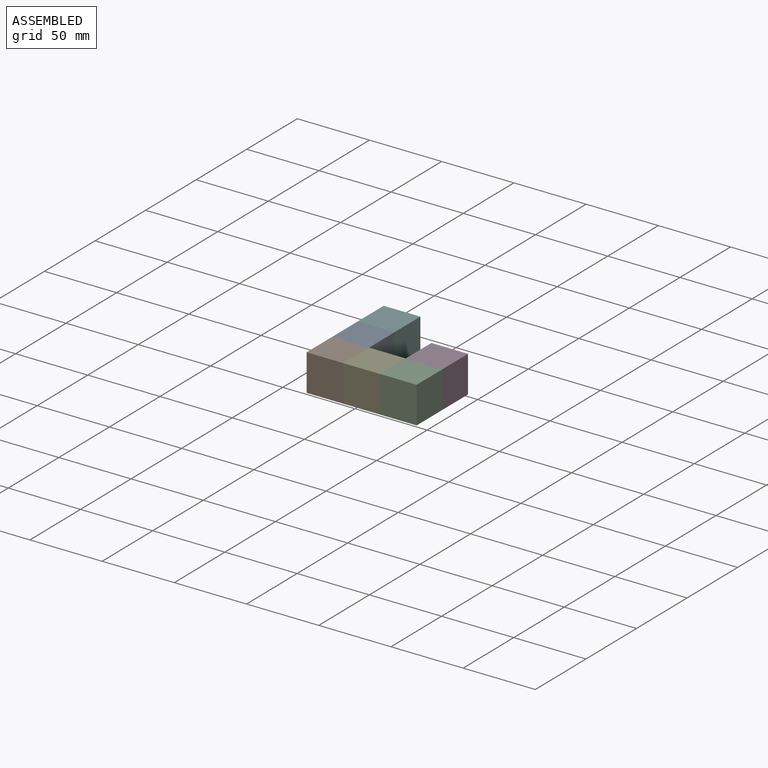
[diagram: assembled view]
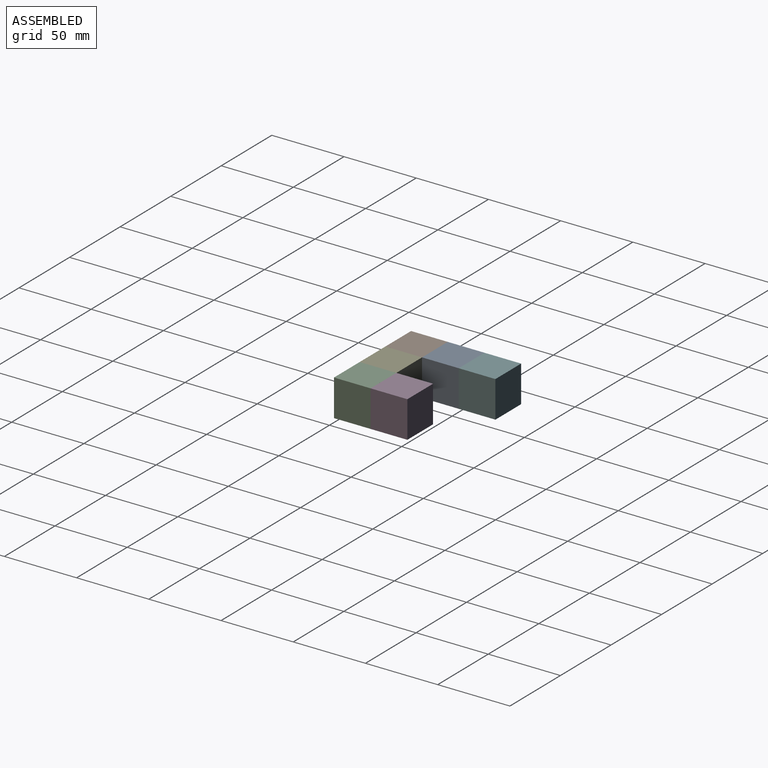
[diagram: assembled view, second angle]
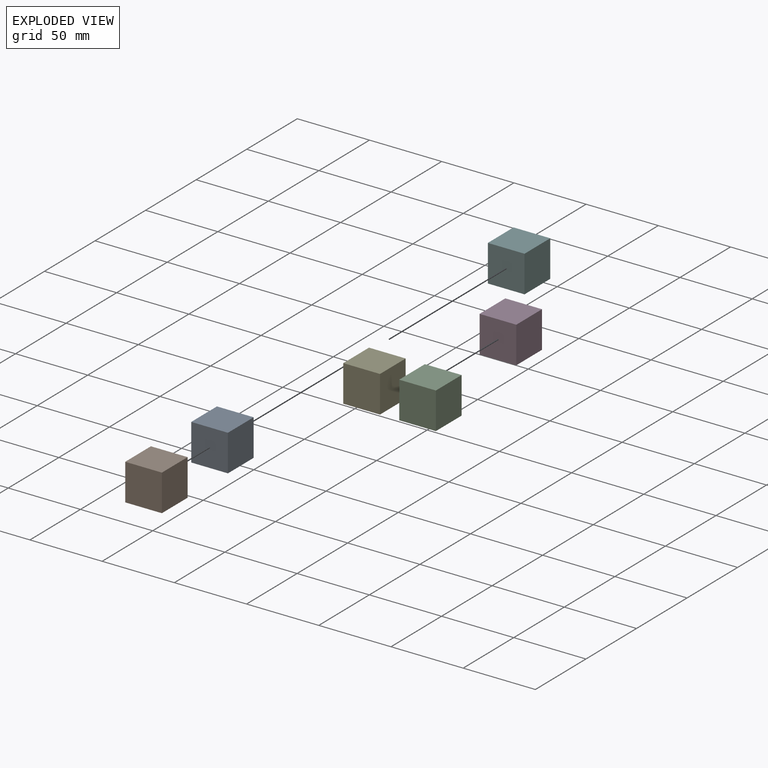
[diagram: exploded view]
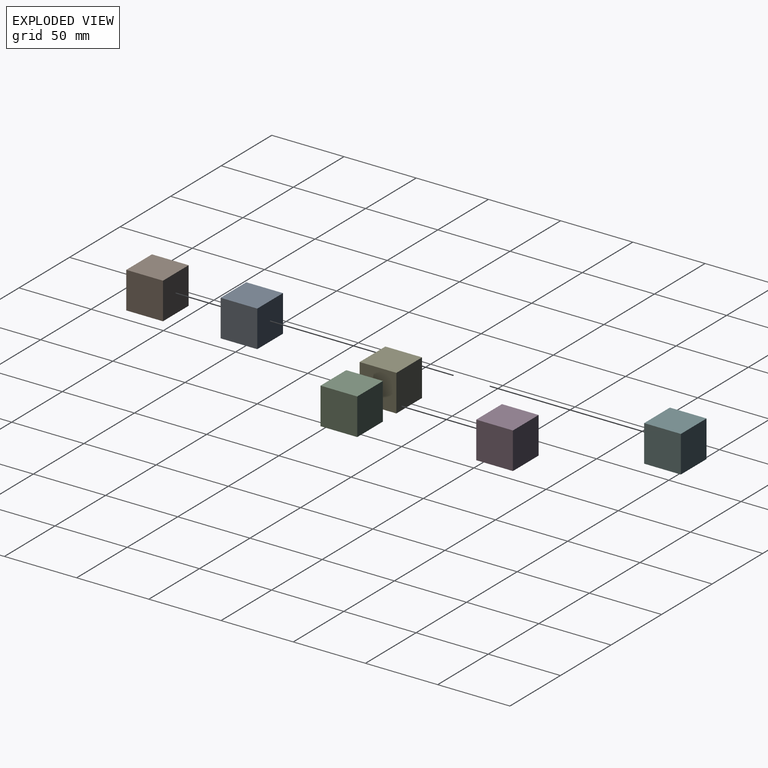
[diagram: exploded view, second angle]
ASSEMBLY  parts=6 mates=5
PART A: 6 faces, bbox 25.4x25.4x25.4 mm
  f0: plane 25.4x25.4mm, normal (-1,0,0), area 645.2mm2, adj f1,f3,f4,f5
  f1: plane 25.4x25.4mm, normal (0,0,-1), area 645.2mm2, adj f0,f2,f4,f5
  f2: plane 25.4x25.4mm, normal (1,0,0), area 645.2mm2, adj f1,f3,f4,f5
  f3: plane 25.4x25.4mm, normal (0,0,1), area 645.2mm2, adj f0,f2,f4,f5
  f4: plane 25.4x25.4mm, normal (0,-1,0), area 645.2mm2, adj f0,f1,f2,f3
  f5: plane 25.4x25.4mm, normal (0,1,0), area 645.2mm2, adj f0,f1,f2,f3
PART B: same geometry as A
PART C: same geometry as A
PART D: same geometry as A
PART E: same geometry as A
PART F: same geometry as A
PLACE A t=(-32.55,-0.47,-15.26)mm
PLACE B rot(axis=(1,0,0),180deg) t=(-32.55,-51.27,10.14)mm
PLACE C rot(axis=(0,-1,0),180deg) t=(43.65,-25.87,10.14)mm
PLACE D rot(axis=(1,0,0),180deg) t=(18.25,-25.87,10.14)mm
PLACE E rot(axis=(-0.58,-0.58,-0.58),120deg) t=(18.25,-51.27,-15.26)mm
PLACE F t=(-32.55,24.93,-15.26)mm
MATE fastened B.f4 <-> A.f4  axis (0,1,0) through (-19.85,-25.87,-2.56)mm
MATE fastened F.f4 <-> A.f5  axis (0,-1,0) through (-19.85,-0.47,-2.56)mm
MATE fastened C.f2 <-> E.f5  axis (-1,0,0) through (18.25,-38.57,-2.56)mm
MATE fastened E.f4 <-> B.f2  axis (-1,0,0) through (-7.15,-38.57,-2.56)mm
MATE fastened D.f5 <-> C.f5  axis (0,-1,0) through (30.95,-25.87,-2.56)mm
